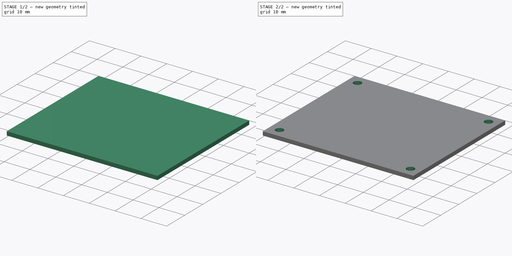
[diagram: build sequence overview — one tinted view per stage of 2, left to right]
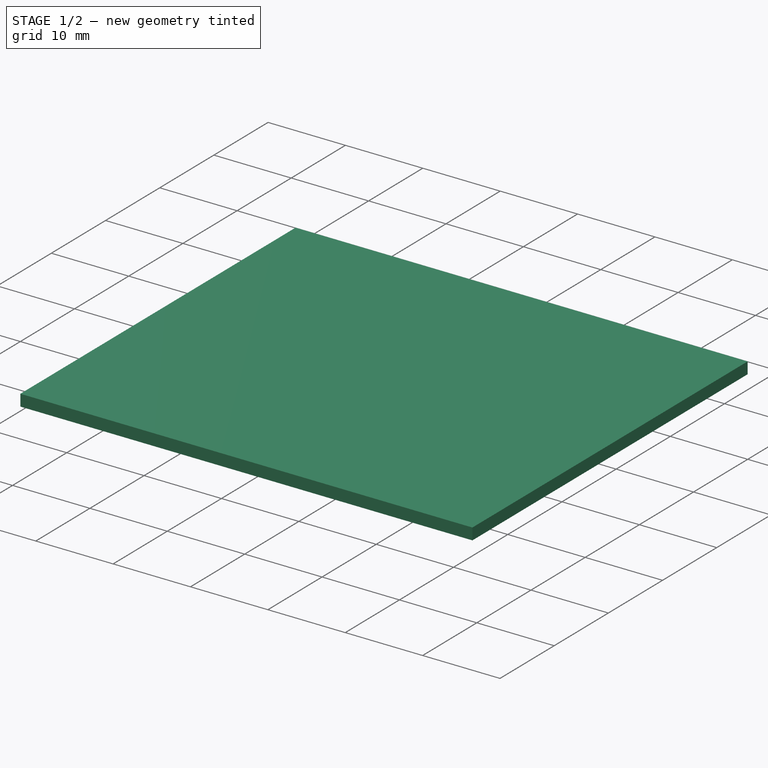
[diagram: stage 1 of 2 — iso view after this stage's code; geometry added in this stage tinted green]
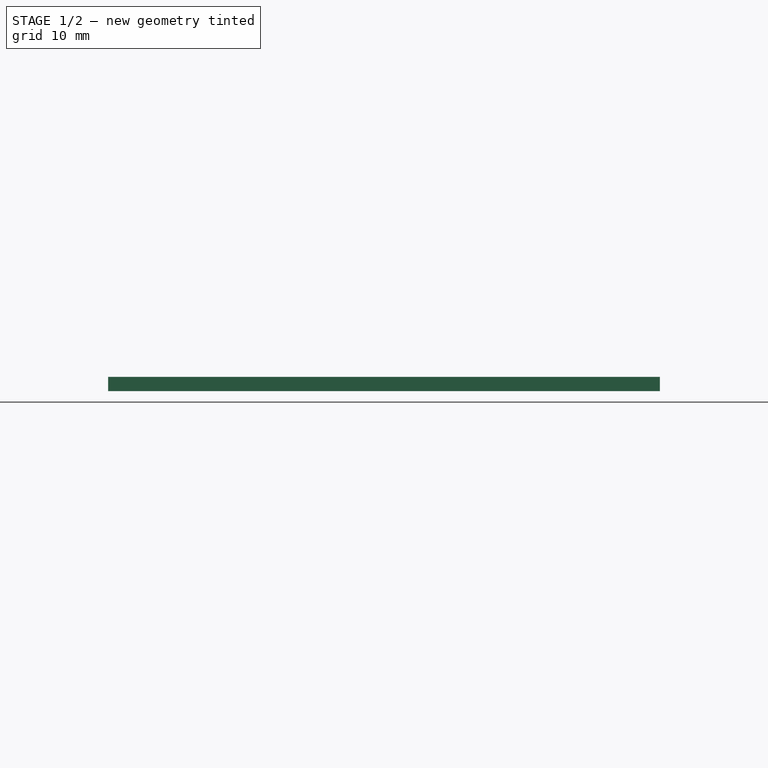
[diagram: stage 1 of 2 — front view after this stage's code; geometry added in this stage tinted green]
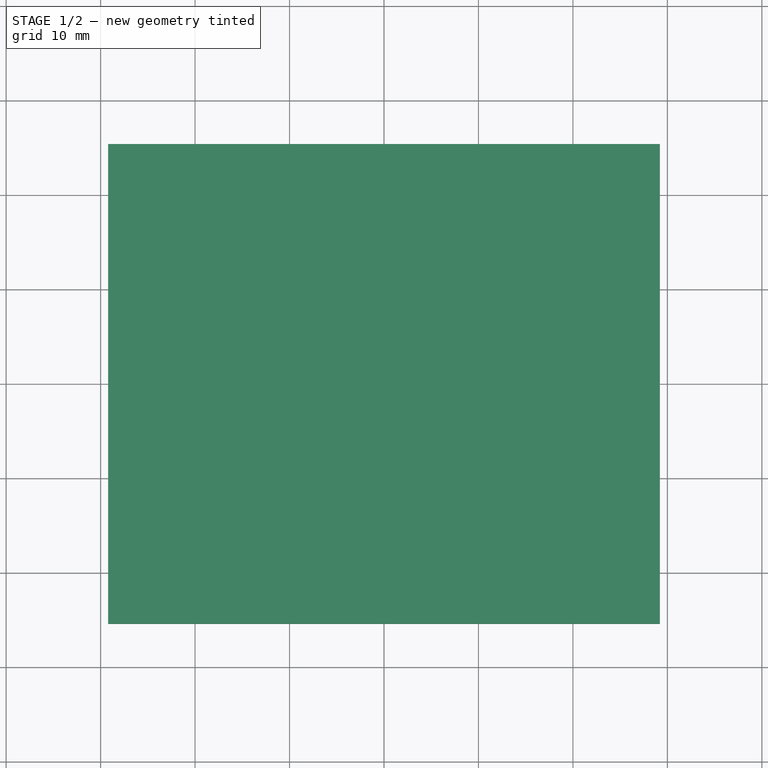
[diagram: stage 1 of 2 — top view after this stage's code; geometry added in this stage tinted green]
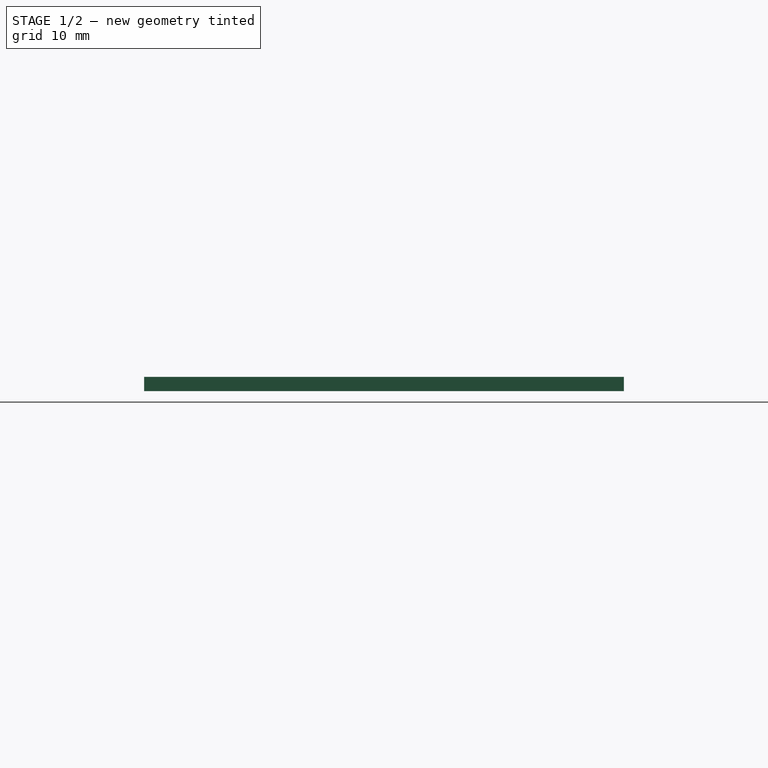
[diagram: stage 1 of 2 — right view after this stage's code; geometry added in this stage tinted green]
FCSTD DOCUMENT  (FreeCAD 0.14R3692 (Git))
Label: KeypadNG
License: CC-BY 3.0
LicenseURL: http://creativecommons.org/licenses/by/3.0/
objects: Sketcher::SketchObject×2, PartDesign::Pad×1, PartDesign::Pocket×1
note: 6 computed .brp shape members not serialized (recipe doc carries the construction recipe); baked Part::Feature solids carry a one-line shape summary decoded from their .brp

FEATURE [Sketcher::SketchObject] Sketch  label="KeypadBoardSketch"
  sketch-geometry (4):
    g0: LineSegment StartX=29.21 StartY=-25.4 StartZ=0 EndX=-29.21 EndY=-25.4 EndZ=0
    g1: LineSegment StartX=-29.21 StartY=-25.4 StartZ=0 EndX=-29.21 EndY=25.4 EndZ=0
    g2: LineSegment StartX=-29.21 StartY=25.4 StartZ=0 EndX=29.21 EndY=25.4 EndZ=0
    g3: LineSegment StartX=29.21 StartY=25.4 StartZ=0 EndX=29.21 EndY=-25.4 EndZ=0
  constraints (11):
    c: Coincident(g0,g1)
    c: Coincident(g1,g2)
    c: Coincident(g2,g3)
    c: Coincident(g3,g0)
    c: Horizontal(g0)
    c: Horizontal(g2)
    c: Vertical(g1)
    c: Vertical(g3)
    c: DistanceX(g0) = -58.42
    c: DistanceY(g3) = -50.8
    c: Symmetric(g0,g2,g-1)
FEATURE [PartDesign::Pad] Pad  label="KeypadBoardPad"
  Length = 1.5
  Length2 = 100
  Sketch = -> Sketch
  Type = 0
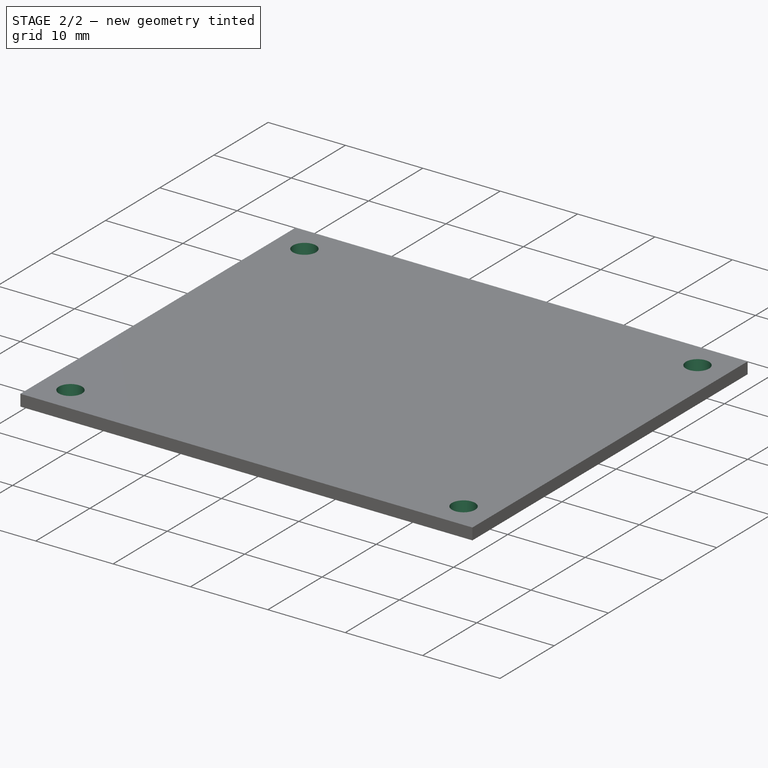
[diagram: stage 2 of 2 — iso view after this stage's code; geometry added in this stage tinted green]
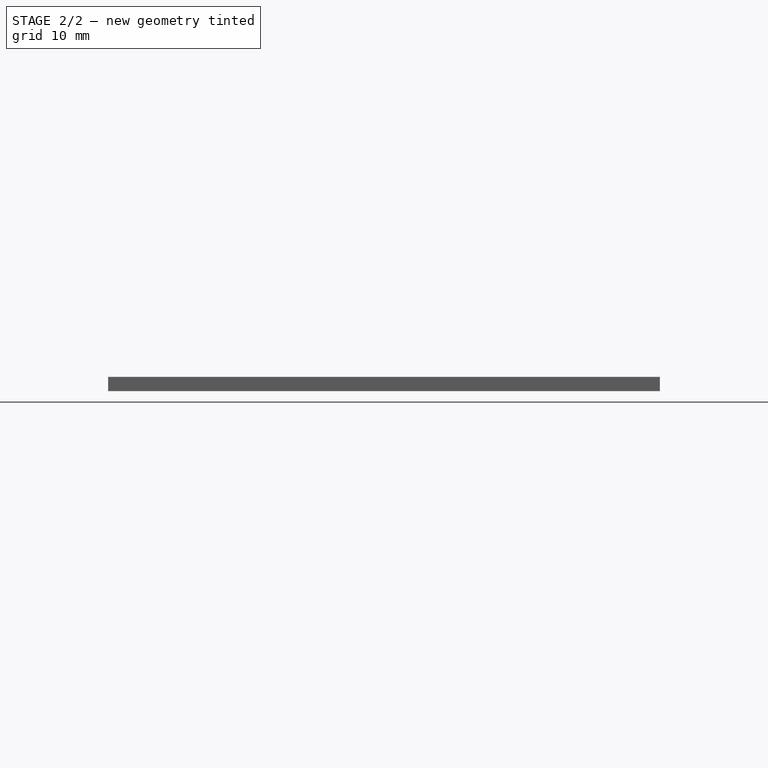
[diagram: stage 2 of 2 — front view after this stage's code; geometry added in this stage tinted green]
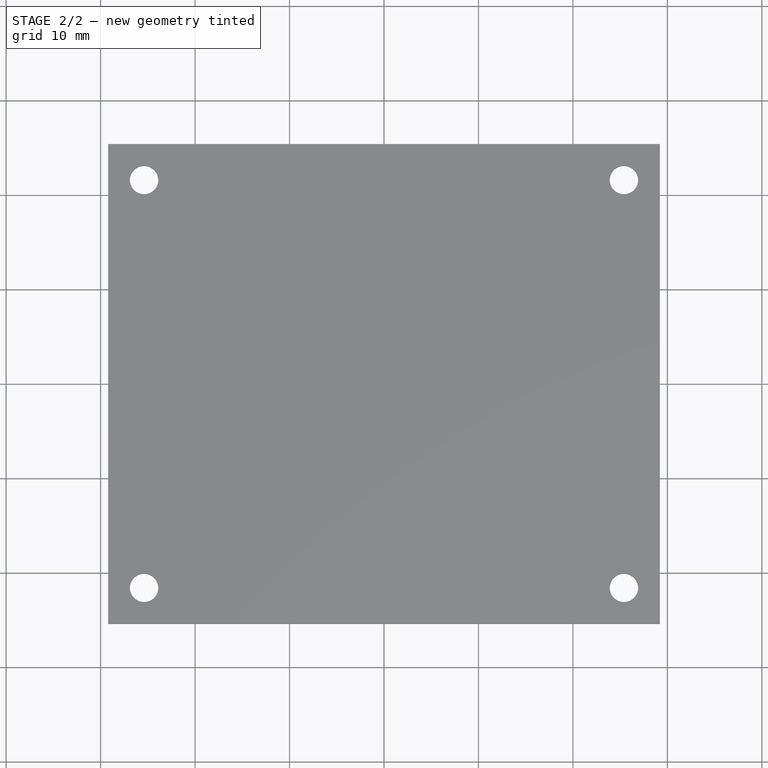
[diagram: stage 2 of 2 — top view after this stage's code; geometry added in this stage tinted green]
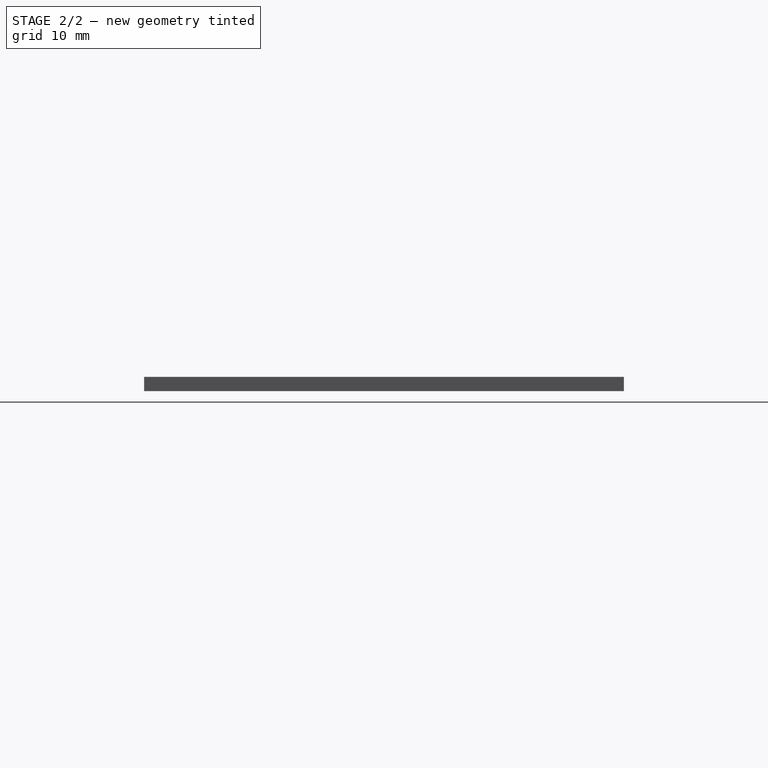
[diagram: stage 2 of 2 — right view after this stage's code; geometry added in this stage tinted green]
FEATURE [Sketcher::SketchObject] Sketch001  label="KeypadBoardHolesSketch001"
  Placement = pos=(0,0,1.5) rot=(0,0,1;0rad)
  Support = -> Pad [Face6]
  sketch-geometry (8):
    g0: Circle CenterX=-25.4 CenterY=21.59 CenterZ=0 NormalX=0 NormalY=0 NormalZ=1 Radius=1.5
    g1: Circle CenterX=25.4 CenterY=21.59 CenterZ=0 NormalX=0 NormalY=0 NormalZ=1 Radius=1.5
    g2: Circle CenterX=25.4 CenterY=-21.59 CenterZ=0 NormalX=0 NormalY=0 NormalZ=1 Radius=1.5
    g3: Circle CenterX=-25.4 CenterY=-21.59 CenterZ=0 NormalX=0 NormalY=0 NormalZ=1 Radius=1.5
    g4: LineSegment [constr] StartX=25.4 StartY=-21.59 StartZ=0 EndX=-25.4 EndY=-21.59 EndZ=0
    g5: LineSegment [constr] StartX=-25.4 StartY=-21.59 StartZ=0 EndX=-25.4 EndY=21.59 EndZ=0
    g6: LineSegment [constr] StartX=-25.4 StartY=21.59 StartZ=0 EndX=25.4 EndY=21.59 EndZ=0
    g7: LineSegment [constr] StartX=25.4 StartY=21.59 StartZ=0 EndX=25.4 EndY=-21.59 EndZ=0
  constraints (19):
    c: Coincident(g4,g5)
    c: Coincident(g5,g6)
    c: Coincident(g6,g7)
    c: Coincident(g7,g4)
    c: Horizontal(g4)
    c: Horizontal(g6)
    c: Vertical(g5)
    c: Vertical(g7)
    c: Coincident(g5,g0)
    c: Coincident(g1,g6)
    c: Coincident(g2,g4)
    c: Coincident(g3,g4)
    c: Symmetric(g3,g1,g-1)
    c: DistanceX(g4) = -50.8
    c: DistanceY(g7) = -43.18
    c: Radius(g1) = 1.5
    c: Equal(g1,g2)
    c: Equal(g2,g3)
    c: Equal(g3,g0)
FEATURE [PartDesign::Pocket] Pocket  label="KeypadBoardHolesPocket"
  Length = 5
  Sketch = -> Sketch001
  Type = 0
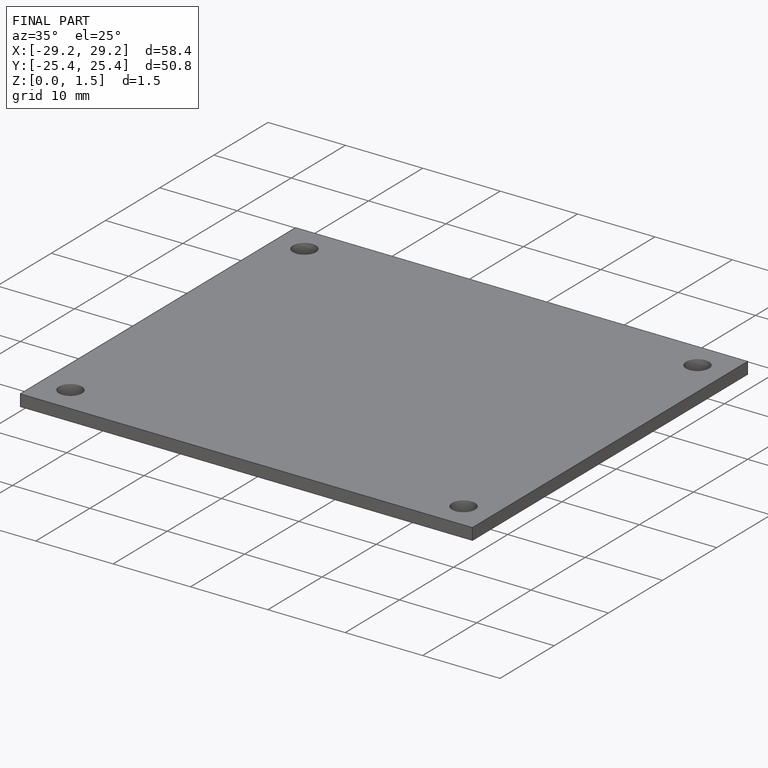
[diagram: finished part — iso view with bounding-box wireframe]
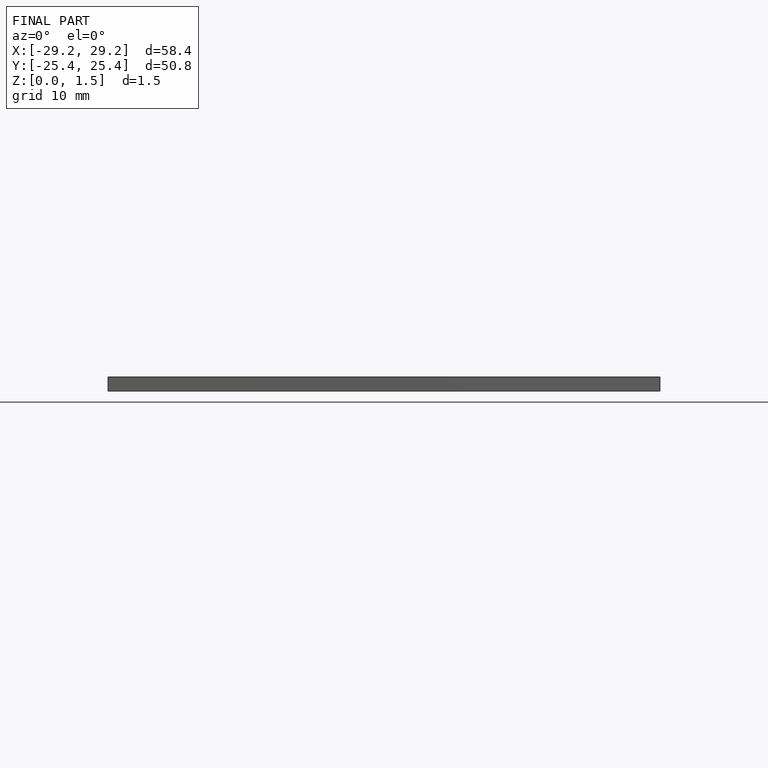
[diagram: finished part — front view with bounding-box wireframe]
